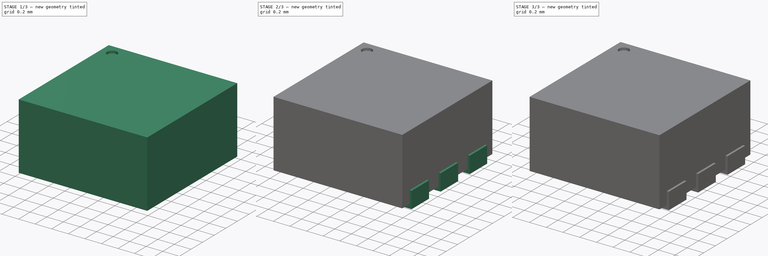
[diagram: build sequence overview — one tinted view per stage of 3, left to right]
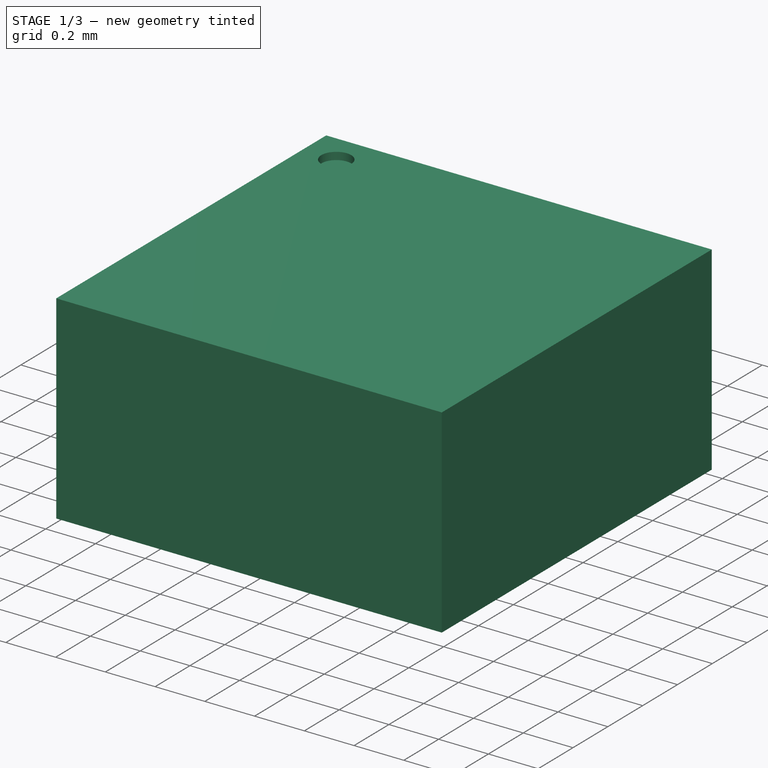
[diagram: stage 1 of 3 — iso view after this stage's code; geometry added in this stage tinted green]
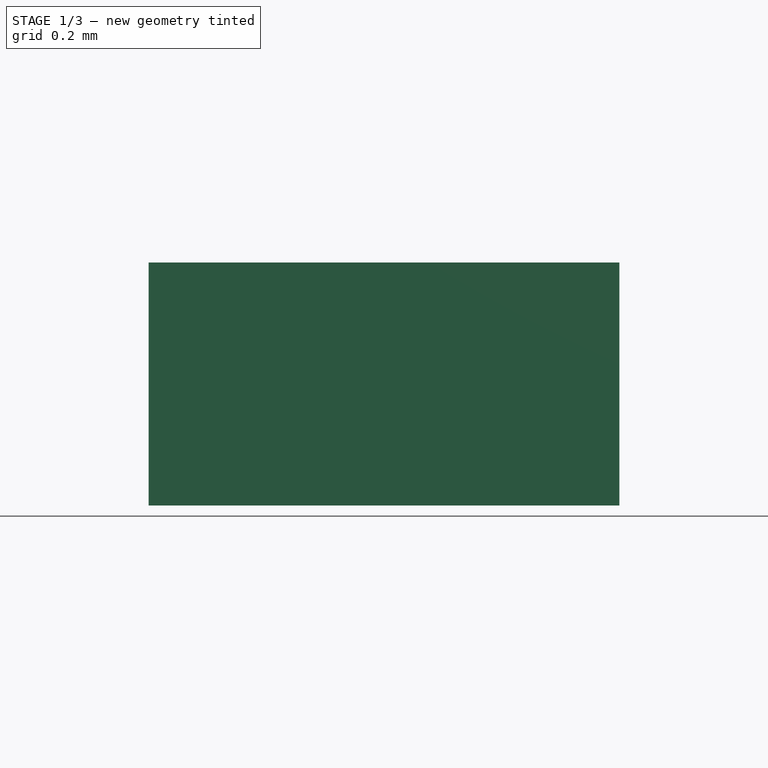
[diagram: stage 1 of 3 — front view after this stage's code; geometry added in this stage tinted green]
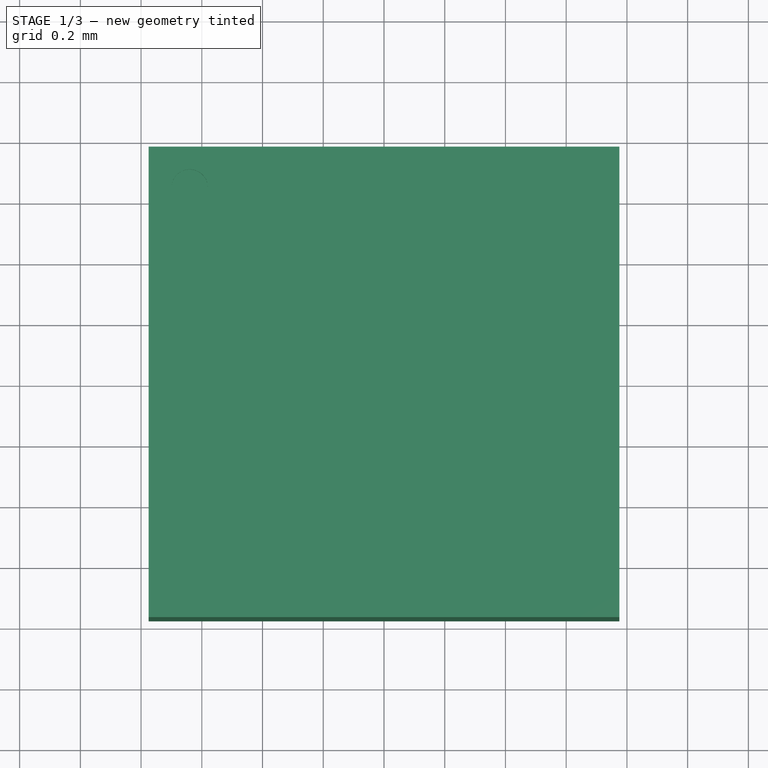
[diagram: stage 1 of 3 — top view after this stage's code; geometry added in this stage tinted green]
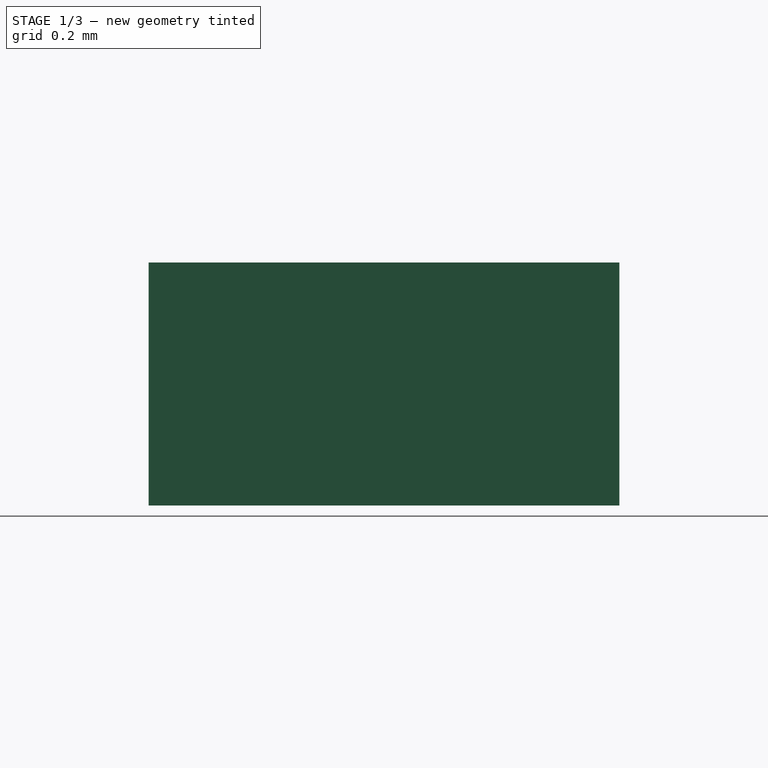
[diagram: stage 1 of 3 — right view after this stage's code; geometry added in this stage tinted green]
FCSTD DOCUMENT  (FreeCAD 0.16R6703 (Git))
Label: WSON-6
License: All rights reserved
LicenseURL: http://en.wikipedia.org/wiki/All_rights_reserved
objects: Sketcher::SketchObject×3, PartDesign::Pad×2, Part::FeaturePython×2, Part::Mirroring×1, Part::MultiFuse×1, PartDesign::Pocket×1, App::DocumentObjectGroup×1
note: 13 computed .brp shape members not serialized (recipe doc carries the construction recipe); baked Part::Feature solids carry a one-line shape summary decoded from their .brp

FEATURE [Sketcher::SketchObject] Sketch
  Placement = pos=(0,0,0.05) rot=(0,0,1;0rad)
  sketch-geometry (4):
    g0: LineSegment StartX=-0.775 StartY=0.775 StartZ=0 EndX=0.775 EndY=0.775 EndZ=0
    g1: LineSegment StartX=0.775 StartY=0.775 StartZ=0 EndX=0.775 EndY=-0.775 EndZ=0
    g2: LineSegment StartX=0.775 StartY=-0.775 StartZ=0 EndX=-0.775 EndY=-0.775 EndZ=0
    g3: LineSegment StartX=-0.775 StartY=-0.775 StartZ=0 EndX=-0.775 EndY=0.775 EndZ=0
  constraints (11):
    c: Coincident(g0,g1)
    c: Coincident(g1,g2)
    c: Coincident(g2,g3)
    c: Coincident(g3,g0)
    c: Horizontal(g0)
    c: Horizontal(g2)
    c: Vertical(g1)
    c: Vertical(g3)
    c: Symmetric(g0,g1,g-1)
    c: DistanceX(g0,g0) = 1.55
    c: DistanceY(g1,g1) = 1.55
FEATURE [PartDesign::Pad] Pad  label="body-src"
  Length = 0.8
  Length2 = 100
  Placement = pos=(0,0,0.05) rot=(0,0,1;0rad)
  Sketch = -> Sketch
  Type = 0
FEATURE [Sketcher::SketchObject] Sketch002
  Placement = pos=(0,0,0.85) rot=(0,0,1;0rad)
  Support = -> Pad [Face6]
  sketch-geometry (1):
    g0: Circle CenterX=-0.64 CenterY=0.64 CenterZ=0 NormalX=0 NormalY=0 NormalZ=1 Radius=0.06
  constraints (3):
    c: Radius(g0) = 0.06
    c: DistanceX(g0,g-1) = 0.64
    c: DistanceY(g-1,g0) = 0.64
FEATURE [PartDesign::Pocket] Pocket  label="body-mark"
  Length = 0.03
  Placement = pos=(0,0,0.05) rot=(0,0,1;0rad)
  Sketch = -> Sketch002
  Type = 0
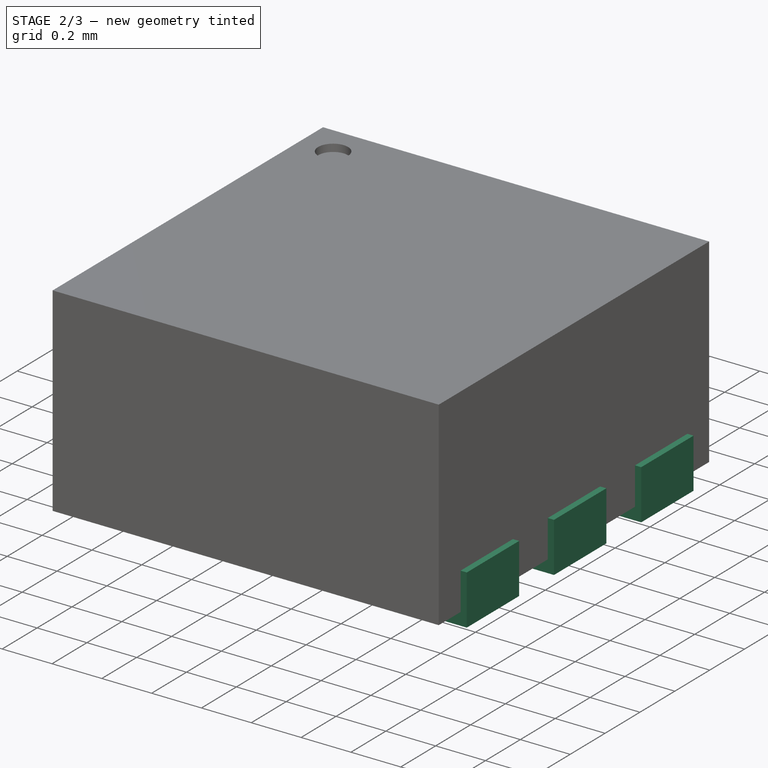
[diagram: stage 2 of 3 — iso view after this stage's code; geometry added in this stage tinted green]
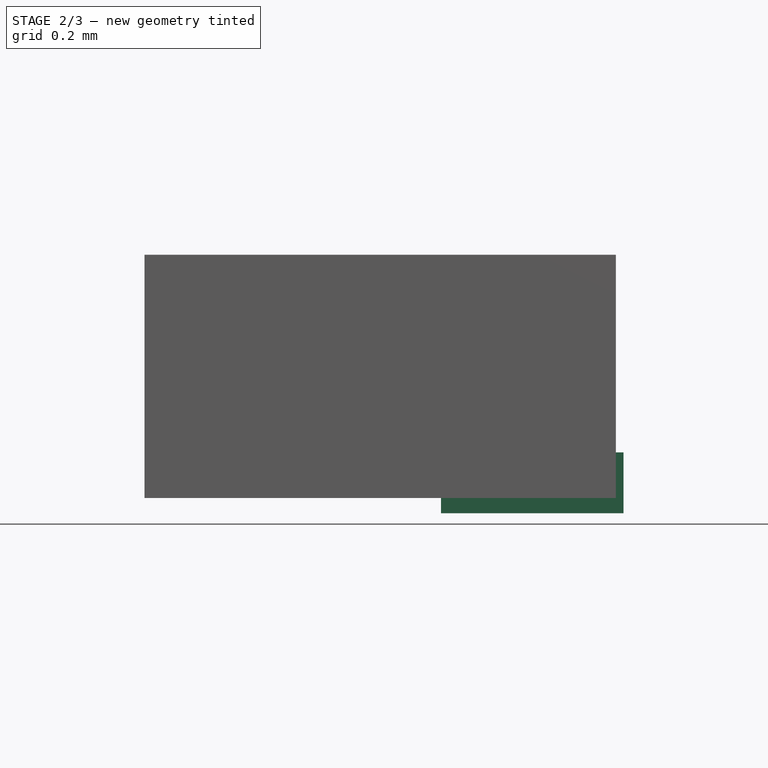
[diagram: stage 2 of 3 — front view after this stage's code; geometry added in this stage tinted green]
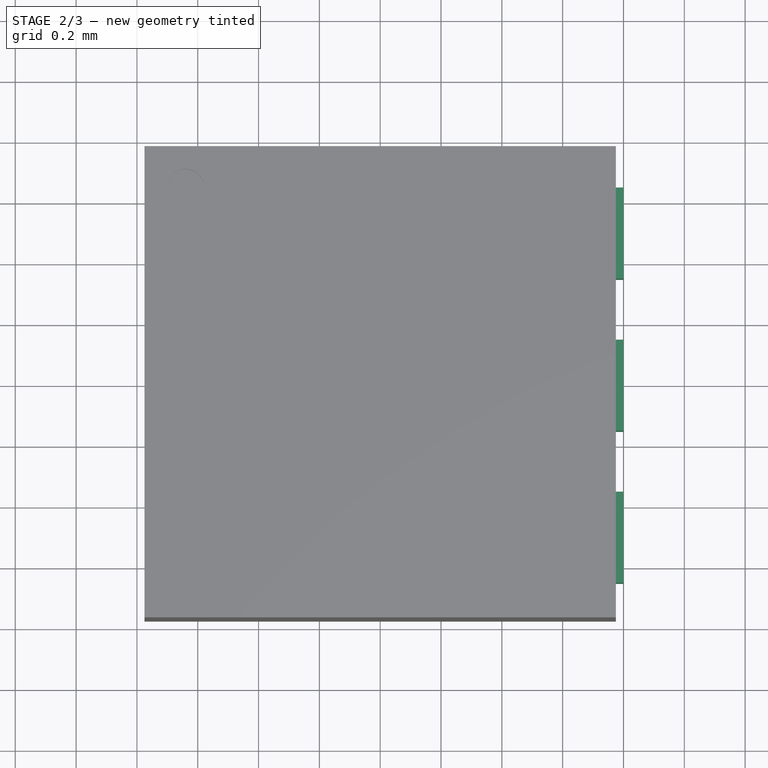
[diagram: stage 2 of 3 — top view after this stage's code; geometry added in this stage tinted green]
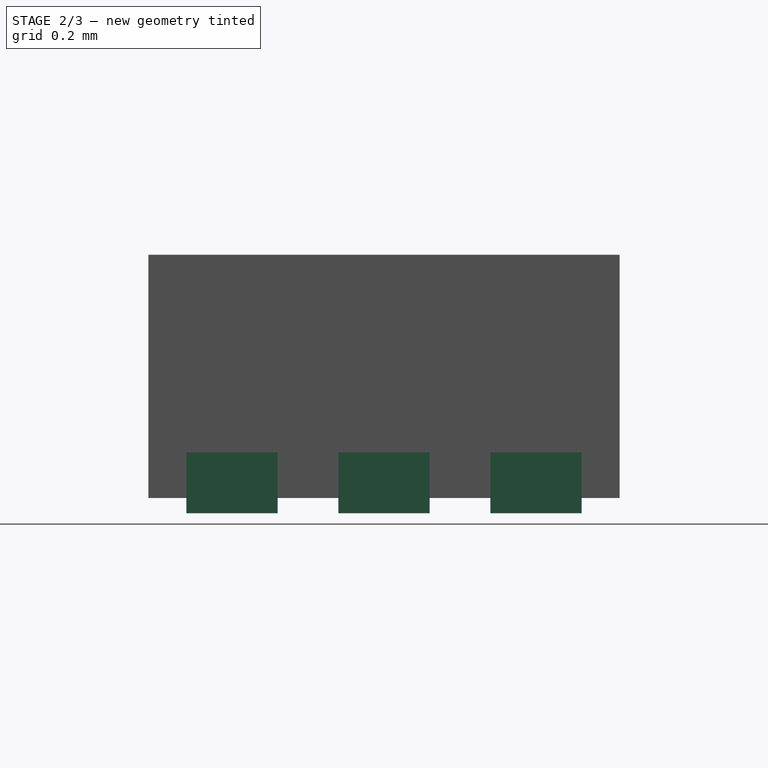
[diagram: stage 2 of 3 — right view after this stage's code; geometry added in this stage tinted green]
FEATURE [Sketcher::SketchObject] Sketch001  label="pads-sketch"
  sketch-geometry (12):
    g0: LineSegment StartX=-0.8 StartY=0.15 StartZ=0 EndX=-0.2 EndY=0.15 EndZ=0
    g1: LineSegment StartX=-0.2 StartY=0.15 StartZ=0 EndX=-0.2 EndY=-0.15 EndZ=0
    g2: LineSegment StartX=-0.2 StartY=-0.15 StartZ=0 EndX=-0.8 EndY=-0.15 EndZ=0
    g3: LineSegment StartX=-0.8 StartY=-0.15 StartZ=0 EndX=-0.8 EndY=0.15 EndZ=0
    g4: LineSegment StartX=-0.8 StartY=0.65 StartZ=0 EndX=-0.2 EndY=0.65 EndZ=0
    g5: LineSegment StartX=-0.2 StartY=0.65 StartZ=0 EndX=-0.2 EndY=0.35 EndZ=0
    g6: LineSegment StartX=-0.2 StartY=0.35 StartZ=0 EndX=-0.8 EndY=0.35 EndZ=0
    g7: LineSegment StartX=-0.8 StartY=0.35 StartZ=0 EndX=-0.8 EndY=0.65 EndZ=0
    g8: LineSegment StartX=-0.8 StartY=-0.35 StartZ=0 EndX=-0.2 EndY=-0.35 EndZ=0
    g9: LineSegment StartX=-0.2 StartY=-0.35 StartZ=0 EndX=-0.2 EndY=-0.65 EndZ=0
    g10: LineSegment StartX=-0.2 StartY=-0.65 StartZ=0 EndX=-0.8 EndY=-0.65 EndZ=0
    g11: LineSegment StartX=-0.8 StartY=-0.65 StartZ=0 EndX=-0.8 EndY=-0.35 EndZ=0
  constraints (34):
    c: Coincident(g0,g1)
    c: Coincident(g1,g2)
    c: Coincident(g2,g3)
    c: Coincident(g3,g0)
    c: Horizontal(g0)
    c: Horizontal(g2)
    c: Vertical(g1)
    c: Vertical(g3)
    c: DistanceX(g0,g0) = 0.6
    c: DistanceY(g1,g1) = 0.3
    c: DistanceX(g2,g-1) = 0.8
    c: Symmetric(g0,g1,g-1)
    c: Coincident(g4,g5)
    c: Coincident(g5,g6)
    c: Coincident(g6,g7)
    c: Coincident(g7,g4)
    c: Horizontal(g4)
    c: Horizontal(g6)
    c: Vertical(g5)
    c: Vertical(g7)
    c: Equal(g6,g0)
    c: Equal(g5,g1)
    c: DistanceY(g2,g6) = 0.5
    c: PointOnObject(g6,g3)
    c: Coincident(g8,g9)
    c: Coincident(g9,g10)
    c: Coincident(g10,g11)
    c: Coincident(g11,g8)
    c: Horizontal(g8)
    c: Horizontal(g10)
    c: Vertical(g9)
    c: Vertical(g11)
    c: Symmetric(g8,g6,g-1)
    c: Symmetric(g9,g4,g-1)
FEATURE [PartDesign::Pad] Pad001  label="pads-left"
  Length = 0.2
  Length2 = 100
  Sketch = -> Sketch001
  Type = 0
FEATURE [Part::Mirroring] Part__Mirroring  label="pads-left (Mirror #1)"
  Base = (0,0,0)
  Normal = (1,0,0)
  Source = -> Pad001
FEATURE [App::DocumentObjectGroup] Group  label="src"
  Group = -> [Pad,Fusion,Pocket]
FEATURE [Part::FeaturePython] Clone001  label="body"  # Draft clone (typed FeaturePython)
  Objects = -> [Pocket]
  Placement = pos=(0,0,0.05) rot=(0,0,1;0rad)
  Scale = (1,1,1)
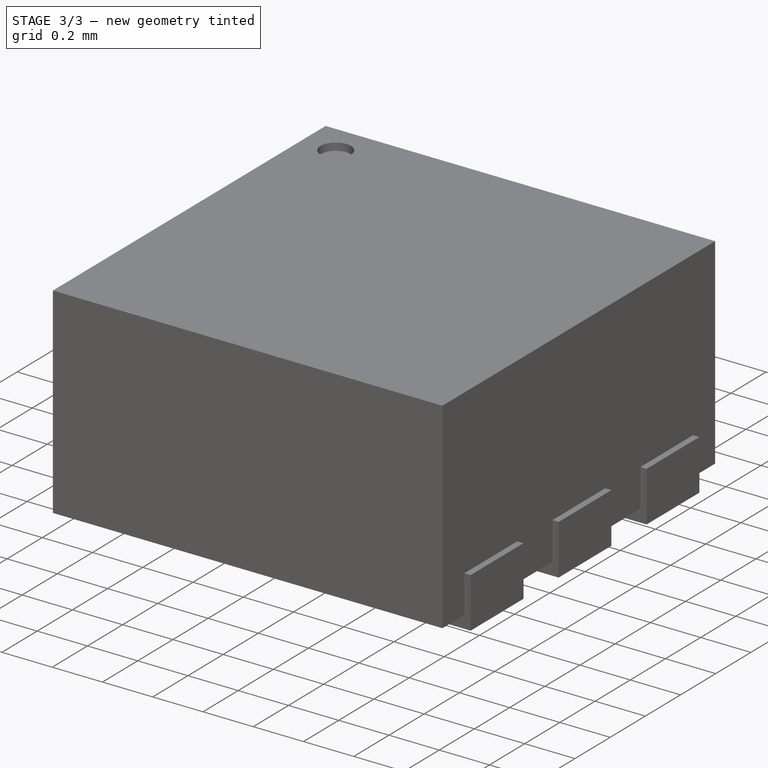
[diagram: stage 3 of 3 — iso view after this stage's code; geometry added in this stage tinted green]
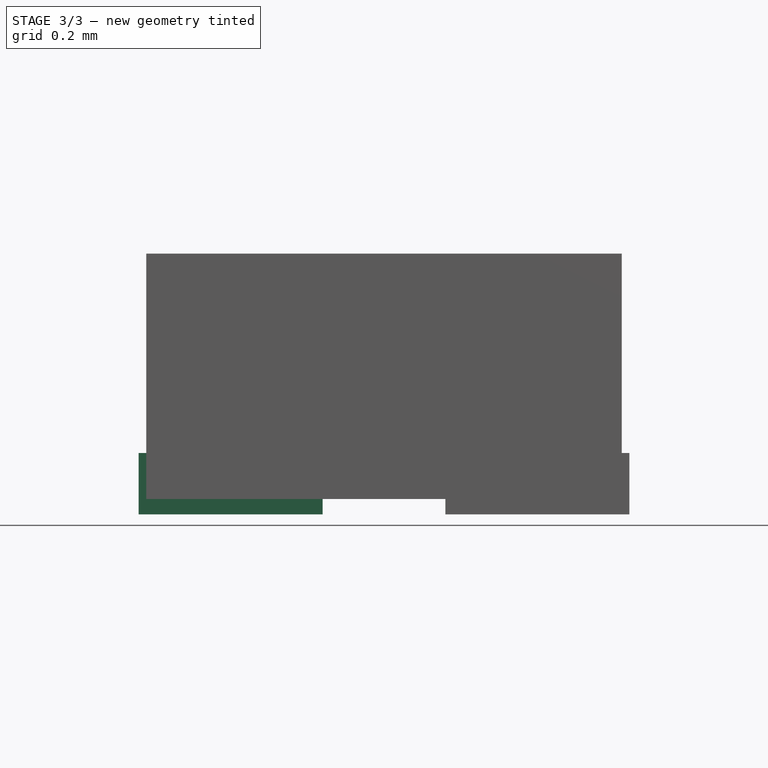
[diagram: stage 3 of 3 — front view after this stage's code; geometry added in this stage tinted green]
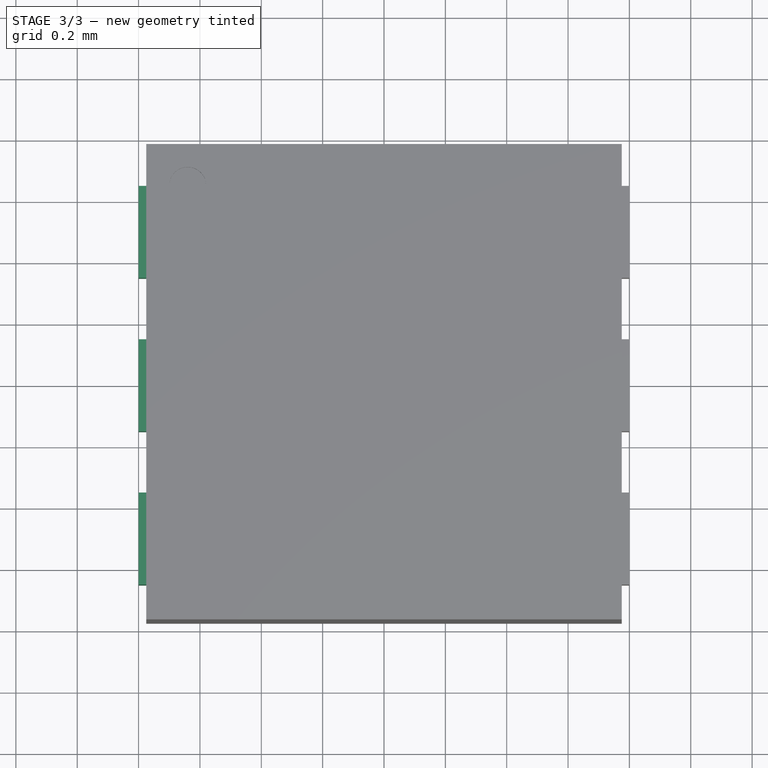
[diagram: stage 3 of 3 — top view after this stage's code; geometry added in this stage tinted green]
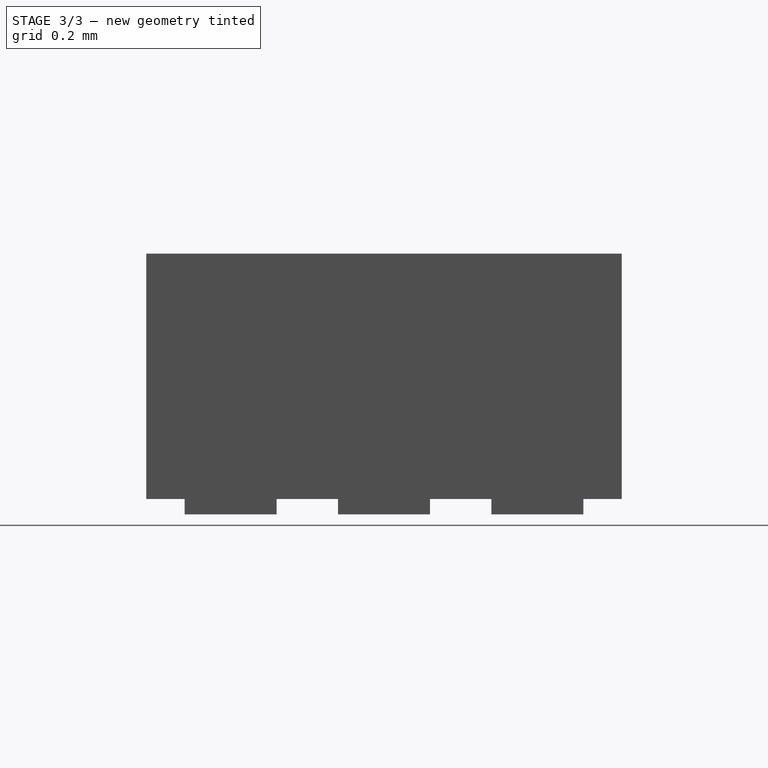
[diagram: stage 3 of 3 — right view after this stage's code; geometry added in this stage tinted green]
FEATURE [Part::MultiFuse] Fusion  label="pads-src"
  Shapes = -> [Part__Mirroring,Pad001]
FEATURE [Part::FeaturePython] Clone  label="pads"  # Draft clone (typed FeaturePython)
  Objects = -> [Fusion]
  Scale = (1,1,1)
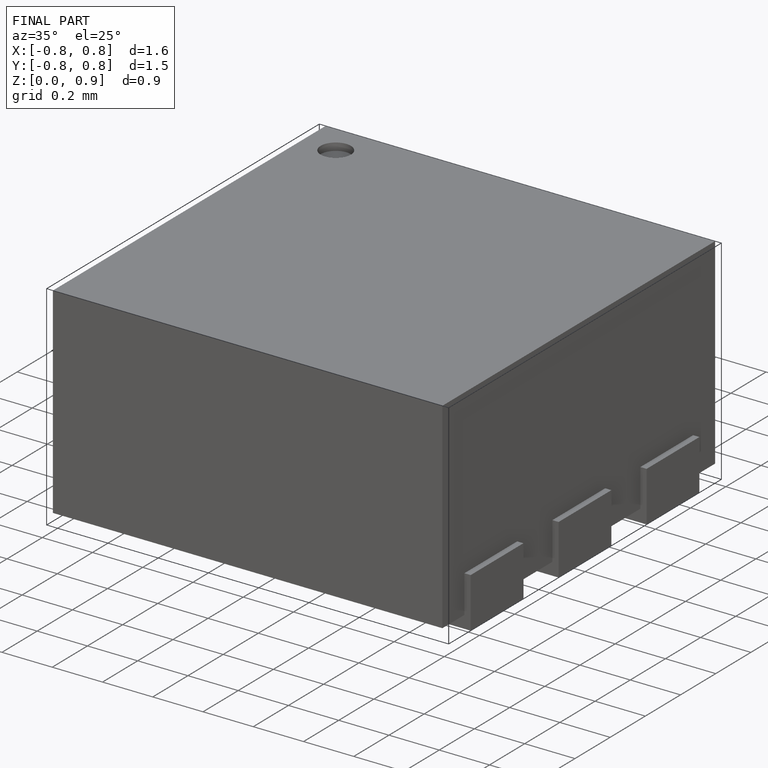
[diagram: finished part — iso view with bounding-box wireframe]
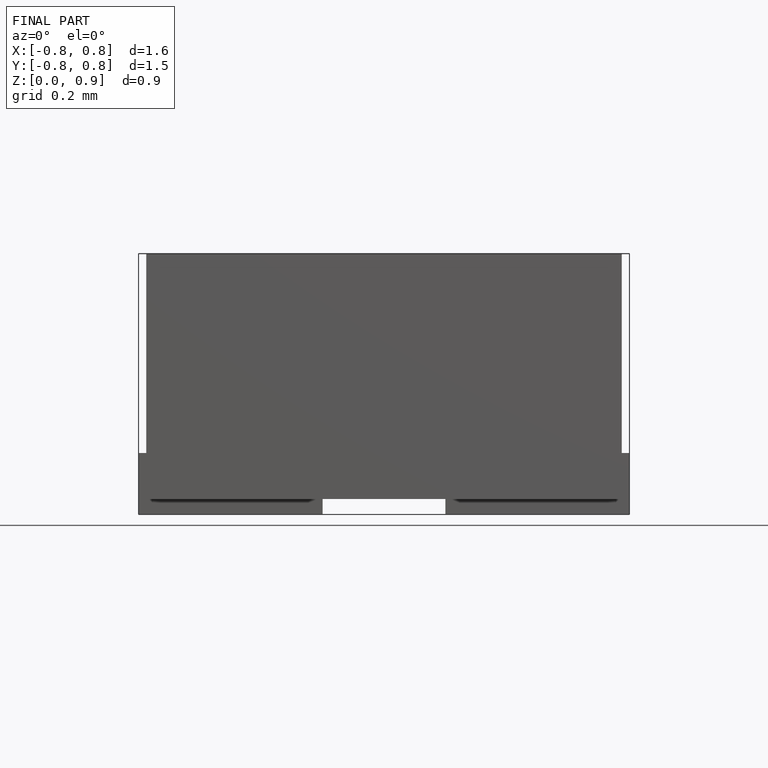
[diagram: finished part — front view with bounding-box wireframe]
